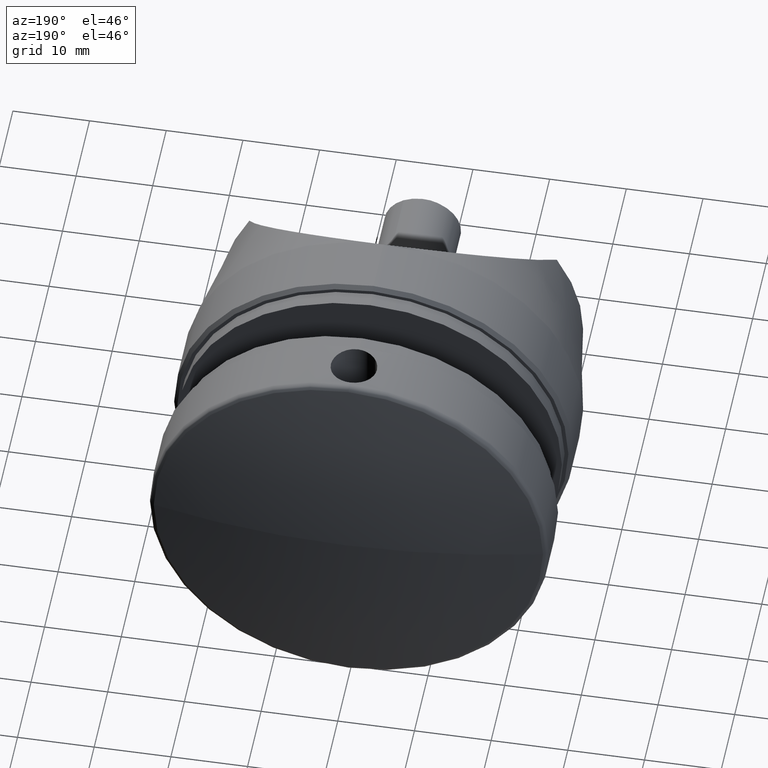
[diagram: clean part render]
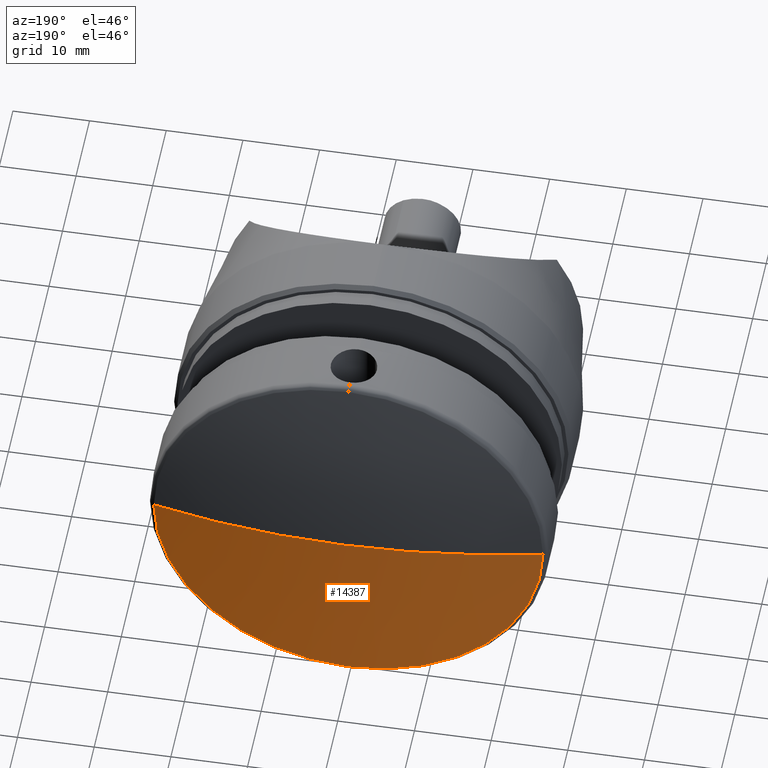
[diagram: same view with one face highlighted and labeled with its STEP entity id]
A machine part, auxiliary view. The second image highlights one B-rep face of the part: STEP entity #14387.
In plain terms, the highlighted spherical surface has radius 114.167 mm.
Its self-contained STEP definition (entity closure, byte-faithful):
#165 = VERTEX_POINT ( 'NONE', #3561 ) ;
#472 = ORIENTED_EDGE ( 'NONE', *, *, #3620, .F. ) ;
#885 = DIRECTION ( 'NONE',  ( 0.000000000000000000, 0.000000000000000000, 1.000000000000000000 ) ) ;
#2102 = DIRECTION ( 'NONE',  ( -0.000000000000000000, -1.000000000000000000, -0.000000000000000000 ) ) ;
#3104 = ORIENTED_EDGE ( 'NONE', *, *, #6054, .F. ) ;
#3352 = AXIS2_PLACEMENT_3D ( 'NONE', #14131, #6297, #14191 ) ;
#3383 = CIRCLE ( 'NONE', #3352, 114.1666666666664440 ) ;
#3516 = CARTESIAN_POINT ( 'NONE',  ( 0.000000000000000000, 16.14368109908169302, 0.000000000000000000 ) ) ;
#3560 = DIRECTION ( 'NONE',  ( 1.000000000000000000, 0.000000000000000000, 0.000000000000000000 ) ) ;
#3561 = CARTESIAN_POINT ( 'NONE',  ( -25.37783004998529535, 16.14368109908169302, 3.107887834002000330E-15 ) ) ;
#3620 = EDGE_CURVE ( 'NONE', #11815, #165, #3383, .T. ) ;
#5676 = AXIS2_PLACEMENT_3D ( 'NONE', #15245, #2102, #8707 ) ;
#5742 = AXIS2_PLACEMENT_3D ( 'NONE', #12951, #9123, #15725 ) ;
#6054 = EDGE_CURVE ( 'NONE', #8008, #9365, #11704, .T. ) ;
#6297 = DIRECTION ( 'NONE',  ( 1.224646799147353207E-16, -0.000000000000000000, 1.000000000000000000 ) ) ;
#6938 = CARTESIAN_POINT ( 'NONE',  ( 6.990692145132794096E-15, 19.00000000000000355, 0.000000000000000000 ) ) ;
#6993 = EDGE_CURVE ( 'NONE', #11815, #9365, #13335, .T. ) ;
#8008 = VERTEX_POINT ( 'NONE', #14740 ) ;
#8290 = EDGE_LOOP ( 'NONE', ( #472, #15184, #3104, #11813 ) ) ;
#8707 = DIRECTION ( 'NONE',  ( 0.000000000000000000, 0.000000000000000000, -1.000000000000000000 ) ) ;
#8823 = CARTESIAN_POINT ( 'NONE',  ( 0.000000000000000000, -95.16666666666644403, 0.000000000000000000 ) ) ;
#9123 = DIRECTION ( 'NONE',  ( 0.000000000000000000, 0.000000000000000000, -1.000000000000000000 ) ) ;
#9365 = VERTEX_POINT ( 'NONE', #12327 ) ;
#9720 = AXIS2_PLACEMENT_3D ( 'NONE', #8823, #885, #3560 ) ;
#11101 = SPHERICAL_SURFACE ( 'NONE', #9720, 114.1666666666664440 ) ;
#11299 = CIRCLE ( 'NONE', #5676, 25.37783004998528824 ) ;
#11704 = CIRCLE ( 'NONE', #16159, 25.37783004998528824 ) ;
#11813 = ORIENTED_EDGE ( 'NONE', *, *, #14107, .F. ) ;
#11815 = VERTEX_POINT ( 'NONE', #6938 ) ;
#12327 = CARTESIAN_POINT ( 'NONE',  ( 25.37783004998529535, 16.14368109908169302, 0.000000000000000000 ) ) ;
#12705 = DIRECTION ( 'NONE',  ( -0.000000000000000000, -1.000000000000000000, -0.000000000000000000 ) ) ;
#12951 = CARTESIAN_POINT ( 'NONE',  ( 0.000000000000000000, -95.16666666666644403, 0.000000000000000000 ) ) ;
#13335 = CIRCLE ( 'NONE', #5742, 114.1666666666664440 ) ;
#14107 = EDGE_CURVE ( 'NONE', #165, #8008, #11299, .T. ) ;
#14131 = CARTESIAN_POINT ( 'NONE',  ( 0.000000000000000000, -95.16666666666644403, 0.000000000000000000 ) ) ;
#14191 = DIRECTION ( 'NONE',  ( 1.000000000000000000, 0.000000000000000000, -1.224646799147353207E-16 ) ) ;
#14387 = ADVANCED_FACE ( 'NONE', ( #16060 ), #11101, .T. ) ;
#14740 = CARTESIAN_POINT ( 'NONE',  ( 0.000000000000000000, 16.14368109908169302, -25.37783004998528824 ) ) ;
#15184 = ORIENTED_EDGE ( 'NONE', *, *, #6993, .T. ) ;
#15245 = CARTESIAN_POINT ( 'NONE',  ( 0.000000000000000000, 16.14368109908169302, 0.000000000000000000 ) ) ;
#15369 = DIRECTION ( 'NONE',  ( 0.000000000000000000, 0.000000000000000000, -1.000000000000000000 ) ) ;
#15725 = DIRECTION ( 'NONE',  ( -1.000000000000000000, 0.000000000000000000, 0.000000000000000000 ) ) ;
#16060 = FACE_OUTER_BOUND ( 'NONE', #8290, .T. ) ;
#16159 = AXIS2_PLACEMENT_3D ( 'NONE', #3516, #12705, #15369 ) ;